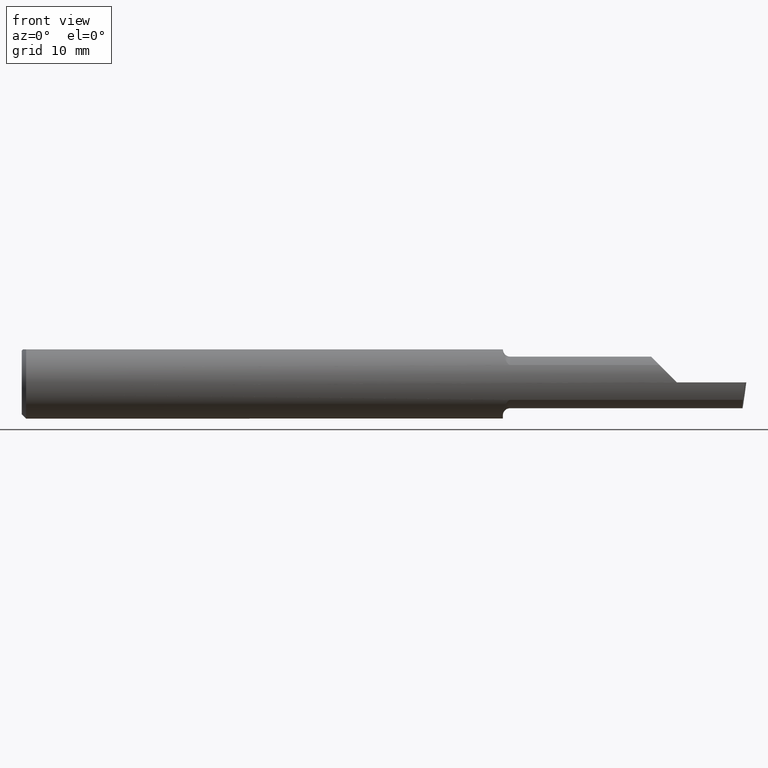
[diagram: clean part render]
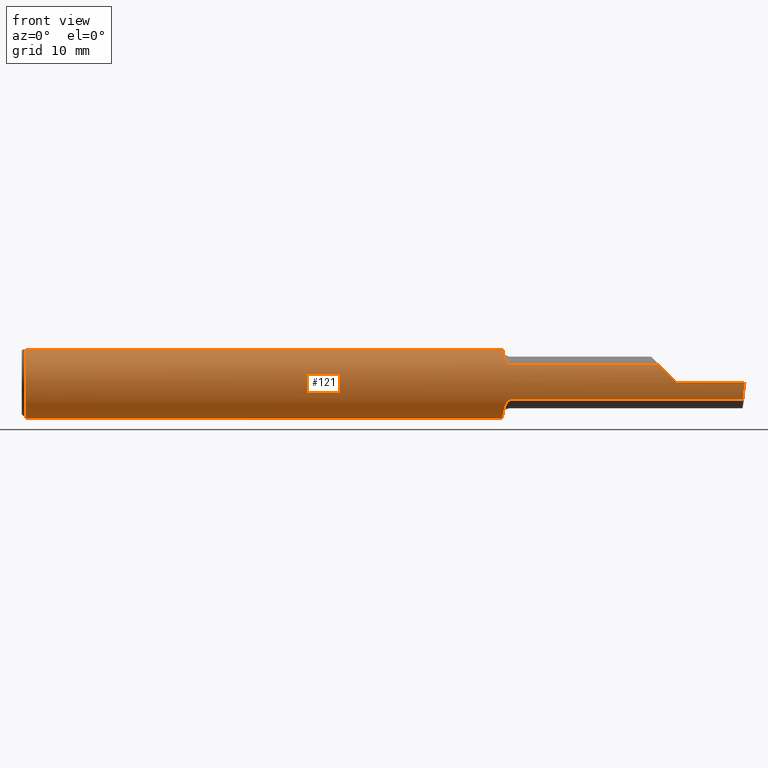
[diagram: same view with one face highlighted and labeled with its STEP entity id]
A machine part, front view. The second image highlights one B-rep face of the part: STEP entity #121.
In plain terms, the highlighted cylindrical surface (edge-blend (fillet) strip) has radius 3.1712 mm, axis along (-1, -0, -0).
Its self-contained STEP definition (entity closure, byte-faithful):
#4 = EDGE_CURVE ( 'NONE', #16, #579, #34, .T. ) ;
#7 = AXIS2_PLACEMENT_3D ( 'NONE', #668, #1187, #69 ) ;
#16 = VERTEX_POINT ( 'NONE', #1185 ) ;
#22 = ORIENTED_EDGE ( 'NONE', *, *, #4, .T. ) ;
#25 = CARTESIAN_POINT ( 'NONE',  ( 1.683134955130017429, -0.1093425883694447709, -0.06026376082415150354 ) ) ;
#28 = EDGE_LOOP ( 'NONE', ( #1107, #1289, #234, #1264, #147, #112, #1150, #81, #1159, #221, #1100, #22, #189, #476 ) ) ;
#32 = CARTESIAN_POINT ( 'NONE',  ( 2.487785916505024453, -0.1093425883694412876, -0.06026376082415470931 ) ) ;
#34 = LINE ( 'NONE', #1261, #127 ) ;
#36 = CARTESIAN_POINT ( 'NONE',  ( 0.01499999999999915637, 0.000000000000000000, -0.1248500000000000026 ) ) ;
#67 = VERTEX_POINT ( 'NONE', #152 ) ;
#69 = DIRECTION ( 'NONE',  ( 0.000000000000000000, 0.000000000000000000, -1.000000000000000000 ) ) ;
#78 = CARTESIAN_POINT ( 'NONE',  ( 2.200086239175845559, -0.1093425883694413153, 0.06026376082415460522 ) ) ;
#80 = CARTESIAN_POINT ( 'NONE',  ( 2.494776250492609648, -0.1248499999999999610, -1.707404996040164512E-17 ) ) ;
#81 = ORIENTED_EDGE ( 'NONE', *, *, #275, .F. ) ;
#112 = ORIENTED_EDGE ( 'NONE', *, *, #1123, .F. ) ;
#115 = DIRECTION ( 'NONE',  ( 1.000000000000000000, 0.000000000000000000, 0.000000000000000000 ) ) ;
#121 = ADVANCED_FACE ( 'NONE', ( #457 ), #248, .T. ) ;
#127 = VECTOR ( 'NONE', #433, 39.37007874015748143 ) ;
#136 = CARTESIAN_POINT ( 'NONE',  ( 2.492174692773018396, -0.1248499999999999888, -0.02118798732072203414 ) ) ;
#147 = ORIENTED_EDGE ( 'NONE', *, *, #837, .T. ) ;
#152 = CARTESIAN_POINT ( 'NONE',  ( 1.685000000000000275, -0.1093425883694413014, -0.06026376082415467461 ) ) ;
#158 = DIRECTION ( 'NONE',  ( -1.000000000000000000, -0.000000000000000000, -0.000000000000000000 ) ) ;
#167 = DIRECTION ( 'NONE',  ( 1.000000000000000000, -0.000000000000000000, -0.000000000000000000 ) ) ;
#173 = CIRCLE ( 'NONE', #932, 0.1248500000000000026 ) ;
#189 = ORIENTED_EDGE ( 'NONE', *, *, #940, .F. ) ;
#192 = CIRCLE ( 'NONE', #7, 0.1248500000000000026 ) ;
#196 = VERTEX_POINT ( 'NONE', #80 ) ;
#199 = CARTESIAN_POINT ( 'NONE',  ( 1.672661867212402509, -0.1027603103061494605, 0.07098658663575843630 ) ) ;
#206 = B_SPLINE_CURVE_WITH_KNOTS ( 'NONE', 3,
 ( #1217, #598, #702, #1116, #784, #486, #199, #1011, #1310, #500, #284, #903 ),
 .UNSPECIFIED., .F., .F.,
 ( 4, 2, 2, 2, 2, 4 ),
 ( 0.000000000000000000, 0.0001399554655829090698, 0.0002799109311658181396, 0.0005598218623316368213, 0.001119643724663264752, 0.002239287449326519963 ),
 .UNSPECIFIED. ) ;
#208 = AXIS2_PLACEMENT_3D ( 'NONE', #753, #970, #252 ) ;
#211 = CARTESIAN_POINT ( 'NONE',  ( 1.975000000000000089, -0.1093425883694413014, 0.06026376082415467461 ) ) ;
#221 = ORIENTED_EDGE ( 'NONE', *, *, #601, .T. ) ;
#233 = CARTESIAN_POINT ( 'NONE',  ( 1.685000000000000275, -0.1093425883694413014, 0.06026376082415467461 ) ) ;
#234 = ORIENTED_EDGE ( 'NONE', *, *, #1318, .T. ) ;
#248 = CYLINDRICAL_SURFACE ( 'NONE', #652, 0.1248500000000000026 ) ;
#250 = DIRECTION ( 'NONE',  ( -1.000000000000000000, -0.000000000000000000, -0.000000000000000000 ) ) ;
#252 = DIRECTION ( 'NONE',  ( 0.000000000000000000, 0.000000000000000000, -1.000000000000000000 ) ) ;
#256 = VECTOR ( 'NONE', #115, 39.37007874015748143 ) ;
#259 = CARTESIAN_POINT ( 'NONE',  ( 2.218537028253239285, -0.1195116721323033065, 0.04181297174676072009 ) ) ;
#261 = CARTESIAN_POINT ( 'NONE',  ( 0.01499999999999915637, -0.05124158467494927677, 0.1138500000000000068 ) ) ;
#275 = EDGE_CURVE ( 'NONE', #767, #881, #1125, .T. ) ;
#279 = CARTESIAN_POINT ( 'NONE',  ( 2.500000000000000000, -0.05124158467494927677, 0.1138500000000000068 ) ) ;
#284 = CARTESIAN_POINT ( 'NONE',  ( 1.660000000000000364, -0.06483863215424717774, 0.1076969818635403198 ) ) ;
#304 = B_SPLINE_CURVE_WITH_KNOTS ( 'NONE', 3,
 ( #716, #407, #1132, #527, #327, #936, #431, #708, #533, #736, #729, #512, #25, #832 ),
 .UNSPECIFIED., .F., .F.,
 ( 4, 2, 2, 2, 2, 2, 4 ),
 ( 0.000000000000000000, 0.0005517145261832036946, 0.001103429052366407389, 0.001655143578549611192, 0.001931000841641212660, 0.002068929473187007539, 0.002206858104732802636 ),
 .UNSPECIFIED. ) ;
#310 = CARTESIAN_POINT ( 'NONE',  ( 2.489794518800235057, -0.1195698034294429557, -0.04170749830123407498 ) ) ;
#318 = CARTESIAN_POINT ( 'NONE',  ( 2.260000000000000231, -0.1248495094103296704, 0.0003499999999999383053 ) ) ;
#324 = VERTEX_POINT ( 'NONE', #398 ) ;
#327 = CARTESIAN_POINT ( 'NONE',  ( 1.663114859723587857, -0.08201250590250440398, -0.09440297353497603683 ) ) ;
#332 =( BOUNDED_CURVE ( )  B_SPLINE_CURVE ( 3, ( #1181, #851, #259, #78 ),
 .UNSPECIFIED., .F., .T. ) 
 B_SPLINE_CURVE_WITH_KNOTS ( ( 4, 4 ),
 ( 4.715192348093415475, 5.216111826723993872 ),
 .UNSPECIFIED. ) 
 CURVE ( )  GEOMETRIC_REPRESENTATION_ITEM ( )  RATIONAL_B_SPLINE_CURVE ( ( 1.000000000000000000, 0.9791990519953639449, 0.9791990519953639449, 1.000000000000000000 ) ) 
 REPRESENTATION_ITEM ( '' )  );
#334 = EDGE_CURVE ( 'NONE', #1209, #881, #206, .T. ) ;
#342 = CARTESIAN_POINT ( 'NONE',  ( 2.494776250492609648, -0.1248499999999999610, -1.707404996040164512E-17 ) ) ;
#362 = EDGE_CURVE ( 'NONE', #638, #196, #1247, .T. ) ;
#374 = DIRECTION ( 'NONE',  ( -1.000000000000000000, -0.000000000000000000, -0.000000000000000000 ) ) ;
#379 = DIRECTION ( 'NONE',  ( -1.000000000000000000, -0.000000000000000000, -0.000000000000000000 ) ) ;
#384 = EDGE_CURVE ( 'NONE', #1273, #67, #304, .T. ) ;
#387 = VERTEX_POINT ( 'NONE', #422 ) ;
#398 = CARTESIAN_POINT ( 'NONE',  ( 2.200086239175845559, -0.1093425883694413153, 0.06026376082415460522 ) ) ;
#407 = CARTESIAN_POINT ( 'NONE',  ( 1.660000000000000586, -0.05816623466208106080, -0.1107165568113169518 ) ) ;
#422 = CARTESIAN_POINT ( 'NONE',  ( 2.260000000000000231, -0.1248499999999999610, -3.414809992080329023E-17 ) ) ;
#431 = CARTESIAN_POINT ( 'NONE',  ( 1.668371954461044471, -0.09675137270842944226, -0.07920056856679652535 ) ) ;
#433 = DIRECTION ( 'NONE',  ( 1.000000000000000000, 0.000000000000000000, 0.000000000000000000 ) ) ;
#451 = LINE ( 'NONE', #279, #1127 ) ;
#455 = LINE ( 'NONE', #854, #804 ) ;
#457 = FACE_OUTER_BOUND ( 'NONE', #28, .T. ) ;
#463 = CARTESIAN_POINT ( 'NONE',  ( 2.487785916505024453, -0.1093425883694412876, -0.06026376082415470931 ) ) ;
#466 = LINE ( 'NONE', #478, #625 ) ;
#476 = ORIENTED_EDGE ( 'NONE', *, *, #384, .T. ) ;
#478 = CARTESIAN_POINT ( 'NONE',  ( 1.975000000000000089, -0.1093425883694413014, -0.06026376082415467461 ) ) ;
#486 = CARTESIAN_POINT ( 'NONE',  ( 1.674262696791654292, -0.1045943557623048581, 0.06824036999240271073 ) ) ;
#496 = DIRECTION ( 'NONE',  ( 1.000000000000000000, 0.000000000000000000, 0.000000000000000000 ) ) ;
#500 = CARTESIAN_POINT ( 'NONE',  ( 1.661513270166816048, -0.07700069323836872259, 0.09928727876353372894 ) ) ;
#512 = CARTESIAN_POINT ( 'NONE',  ( 1.681405924813791142, -0.1089009754209322167, -0.06106964548229005391 ) ) ;
#523 = CIRCLE ( 'NONE', #904, 0.1248500000000000026 ) ;
#527 = CARTESIAN_POINT ( 'NONE',  ( 1.661938239095210212, -0.07637198179816161170, -0.09902894417965883711 ) ) ;
#533 = CARTESIAN_POINT ( 'NONE',  ( 1.674283923201367097, -0.1046119976162258602, -0.06821230220210329487 ) ) ;
#579 = VERTEX_POINT ( 'NONE', #745 ) ;
#598 = CARTESIAN_POINT ( 'NONE',  ( 1.683123630933980763, -0.1093425883694412876, 0.06026376082415465379 ) ) ;
#601 = EDGE_CURVE ( 'NONE', #616, #725, #1290, .T. ) ;
#616 = VERTEX_POINT ( 'NONE', #261 ) ;
#625 = VECTOR ( 'NONE', #374, 39.37007874015748143 ) ;
#638 = VERTEX_POINT ( 'NONE', #463 ) ;
#652 = AXIS2_PLACEMENT_3D ( 'NONE', #1298, #991, #671 ) ;
#659 = VERTEX_POINT ( 'NONE', #318 ) ;
#668 = CARTESIAN_POINT ( 'NONE',  ( 1.660000000000000364, 0.000000000000000000, 0.000000000000000000 ) ) ;
#671 = DIRECTION ( 'NONE',  ( 0.000000000000000000, 0.000000000000000000, 1.000000000000000000 ) ) ;
#692 = CARTESIAN_POINT ( 'NONE',  ( 1.660000000000000364, 0.000000000000000000, 0.000000000000000000 ) ) ;
#702 = CARTESIAN_POINT ( 'NONE',  ( 1.681414604163055770, -0.1089048667610733045, 0.06106289298433214413 ) ) ;
#708 = CARTESIAN_POINT ( 'NONE',  ( 1.672660015980654169, -0.1027612295985233376, -0.07098704890307022675 ) ) ;
#716 = CARTESIAN_POINT ( 'NONE',  ( 1.660000000000000364, -0.05147485746864310929, -0.1137447209701746148 ) ) ;
#725 = VERTEX_POINT ( 'NONE', #36 ) ;
#729 = CARTESIAN_POINT ( 'NONE',  ( 1.678582821436010786, -0.1077233320814302286, -0.06312374966870223925 ) ) ;
#736 = CARTESIAN_POINT ( 'NONE',  ( 1.677410496273541662, -0.1069869057687729968, -0.06437073033037428449 ) ) ;
#745 = CARTESIAN_POINT ( 'NONE',  ( 1.660000000000000364, 0.05124158467494929065, 0.1138500000000000068 ) ) ;
#753 = CARTESIAN_POINT ( 'NONE',  ( 0.01499999999999915637, 0.000000000000000000, 0.000000000000000000 ) ) ;
#767 = VERTEX_POINT ( 'NONE', #824 ) ;
#775 = DIRECTION ( 'NONE',  ( 0.000000000000000000, 0.000000000000000000, 1.000000000000000000 ) ) ;
#784 = CARTESIAN_POINT ( 'NONE',  ( 1.677410591121773820, -0.1069877332768024158, 0.06436962514882094144 ) ) ;
#804 = VECTOR ( 'NONE', #158, 39.37007874015748143 ) ;
#824 = CARTESIAN_POINT ( 'NONE',  ( 1.660000000000000364, -0.05124158467494927677, 0.1138500000000000068 ) ) ;
#832 = CARTESIAN_POINT ( 'NONE',  ( 1.685000000000000275, -0.1093425883694413014, -0.06026376082415467461 ) ) ;
#837 = EDGE_CURVE ( 'NONE', #659, #324, #332, .T. ) ;
#851 = CARTESIAN_POINT ( 'NONE',  ( 2.238932527582364163, -0.1247904493837345002, 0.02141747241763543308 ) ) ;
#854 = CARTESIAN_POINT ( 'NONE',  ( 2.500000000000000000, -0.1248500000000000026, -3.414809992080329023E-17 ) ) ;
#871 = DIRECTION ( 'NONE',  ( 0.000000000000000000, 0.000000000000000000, -1.000000000000000000 ) ) ;
#881 = VERTEX_POINT ( 'NONE', #1172 ) ;
#883 = EDGE_CURVE ( 'NONE', #767, #616, #451, .T. ) ;
#903 = CARTESIAN_POINT ( 'NONE',  ( 1.660000000000000364, -0.05147485746864310929, 0.1137447209701746148 ) ) ;
#904 = AXIS2_PLACEMENT_3D ( 'NONE', #1300, #379, #775 ) ;
#932 = AXIS2_PLACEMENT_3D ( 'NONE', #1081, #167, #871 ) ;
#936 = CARTESIAN_POINT ( 'NONE',  ( 1.666361277442389044, -0.09219001326833792254, -0.08449244930902043149 ) ) ;
#940 = EDGE_CURVE ( 'NONE', #1273, #579, #192, .T. ) ;
#944 = EDGE_CURVE ( 'NONE', #638, #67, #466, .T. ) ;
#970 = DIRECTION ( 'NONE',  ( 1.000000000000000000, -0.000000000000000000, -0.000000000000000000 ) ) ;
#971 = EDGE_CURVE ( 'NONE', #725, #16, #173, .T. ) ;
#989 = EDGE_CURVE ( 'NONE', #387, #659, #523, .T. ) ;
#991 = DIRECTION ( 'NONE',  ( -1.000000000000000000, -0.000000000000000000, -0.000000000000000000 ) ) ;
#1011 = CARTESIAN_POINT ( 'NONE',  ( 1.668415758364236279, -0.09681973434311108573, 0.07911054902715594639 ) ) ;
#1053 = CARTESIAN_POINT ( 'NONE',  ( 1.660000000000000364, -0.05147485746864310929, -0.1137447209701746148 ) ) ;
#1081 = CARTESIAN_POINT ( 'NONE',  ( 0.01499999999999915637, 0.000000000000000000, 0.000000000000000000 ) ) ;
#1100 = ORIENTED_EDGE ( 'NONE', *, *, #971, .T. ) ;
#1107 = ORIENTED_EDGE ( 'NONE', *, *, #944, .F. ) ;
#1116 = CARTESIAN_POINT ( 'NONE',  ( 1.678569800726603889, -0.1077176293511043076, 0.06313366163023680089 ) ) ;
#1123 = EDGE_CURVE ( 'NONE', #1209, #324, #1128, .T. ) ;
#1125 = CIRCLE ( 'NONE', #1288, 0.1248500000000000026 ) ;
#1127 = VECTOR ( 'NONE', #250, 39.37007874015748143 ) ;
#1128 = LINE ( 'NONE', #211, #256 ) ;
#1132 = CARTESIAN_POINT ( 'NONE',  ( 1.660388743662555511, -0.06447589190997096709, -0.1071553580159688435 ) ) ;
#1150 = ORIENTED_EDGE ( 'NONE', *, *, #334, .T. ) ;
#1159 = ORIENTED_EDGE ( 'NONE', *, *, #883, .T. ) ;
#1172 = CARTESIAN_POINT ( 'NONE',  ( 1.660000000000000364, -0.05147485746864310929, 0.1137447209701746148 ) ) ;
#1181 = CARTESIAN_POINT ( 'NONE',  ( 2.260000000000000231, -0.1248495094103296704, 0.0003499999999999383053 ) ) ;
#1185 = CARTESIAN_POINT ( 'NONE',  ( 0.01499999999999915637, 0.05124158467494929065, 0.1138500000000000068 ) ) ;
#1187 = DIRECTION ( 'NONE',  ( 1.000000000000000000, 0.000000000000000000, 0.000000000000000000 ) ) ;
#1207 = DIRECTION ( 'NONE',  ( 0.000000000000000000, 0.000000000000000000, -1.000000000000000000 ) ) ;
#1209 = VERTEX_POINT ( 'NONE', #233 ) ;
#1217 = CARTESIAN_POINT ( 'NONE',  ( 1.685000000000000275, -0.1093425883694413014, 0.06026376082415467461 ) ) ;
#1247 =( BOUNDED_CURVE ( )  B_SPLINE_CURVE ( 3, ( #32, #310, #136, #342 ),
 .UNSPECIFIED., .F., .T. ) 
 B_SPLINE_CURVE_WITH_KNOTS ( ( 4, 4 ),
 ( 0.8554227114044697933, 1.359145557743775656 ),
 .UNSPECIFIED. ) 
 CURVE ( )  GEOMETRIC_REPRESENTATION_ITEM ( )  RATIONAL_B_SPLINE_CURVE ( ( 1.000000000000000000, 0.9789668132830409153, 0.9789668132830409153, 1.000000000000000000 ) ) 
 REPRESENTATION_ITEM ( '' )  );
#1261 = CARTESIAN_POINT ( 'NONE',  ( 2.500000000000000000, 0.05124158467494929065, 0.1138500000000000068 ) ) ;
#1264 = ORIENTED_EDGE ( 'NONE', *, *, #989, .T. ) ;
#1273 = VERTEX_POINT ( 'NONE', #1053 ) ;
#1288 = AXIS2_PLACEMENT_3D ( 'NONE', #692, #496, #1207 ) ;
#1289 = ORIENTED_EDGE ( 'NONE', *, *, #362, .T. ) ;
#1290 = CIRCLE ( 'NONE', #208, 0.1248500000000000026 ) ;
#1298 = CARTESIAN_POINT ( 'NONE',  ( 2.500000000000000000, 0.000000000000000000, 0.000000000000000000 ) ) ;
#1300 = CARTESIAN_POINT ( 'NONE',  ( 2.260000000000000231, 0.000000000000000000, 0.000000000000000000 ) ) ;
#1310 = CARTESIAN_POINT ( 'NONE',  ( 1.666359086621634678, -0.09217855052086350309, 0.08450162317811928114 ) ) ;
#1318 = EDGE_CURVE ( 'NONE', #196, #387, #455, .T. ) ;